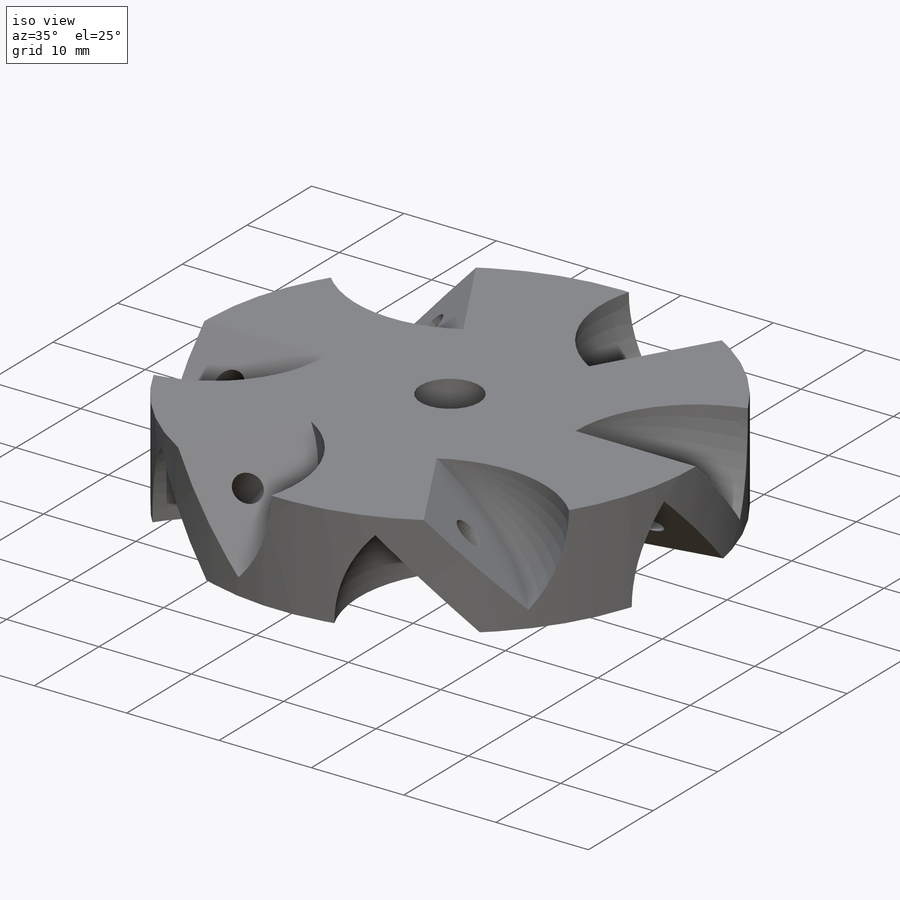
[diagram: iso view]
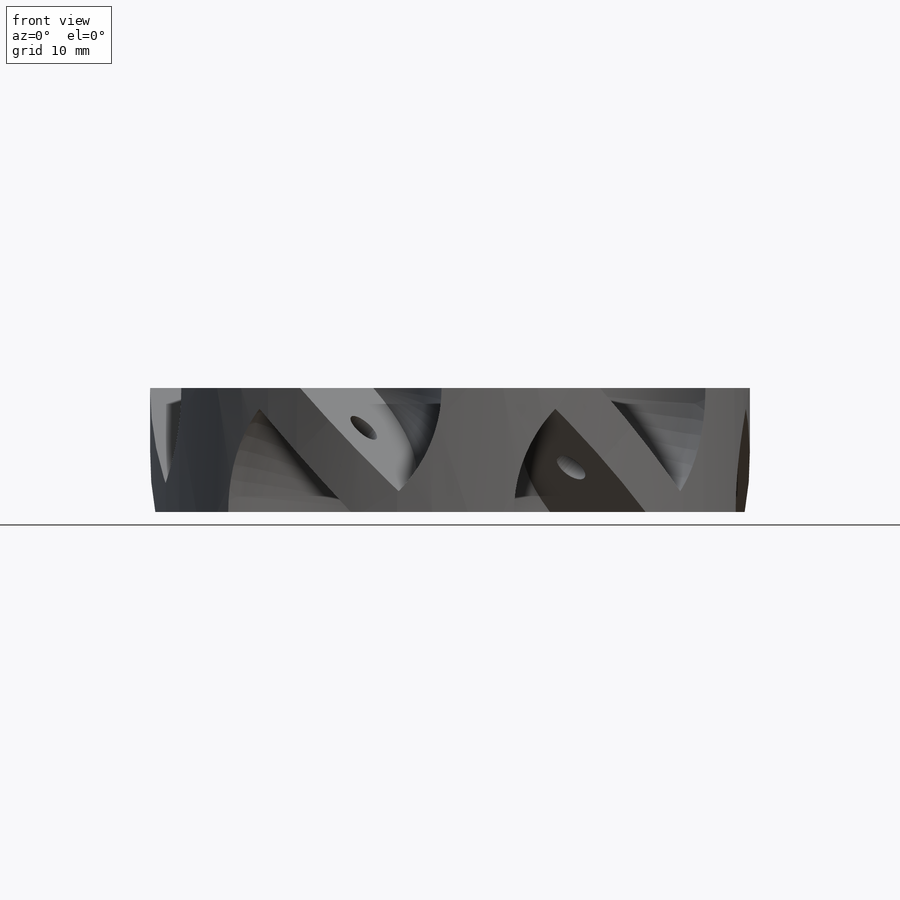
[diagram: front view]
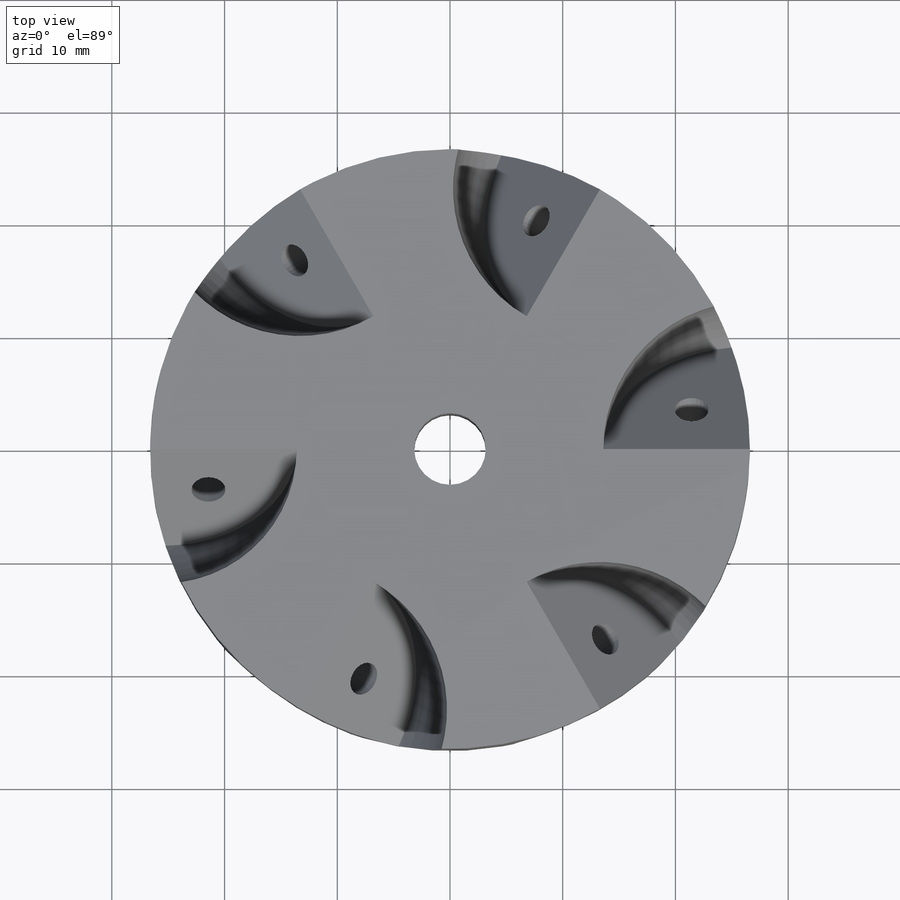
[diagram: top view]
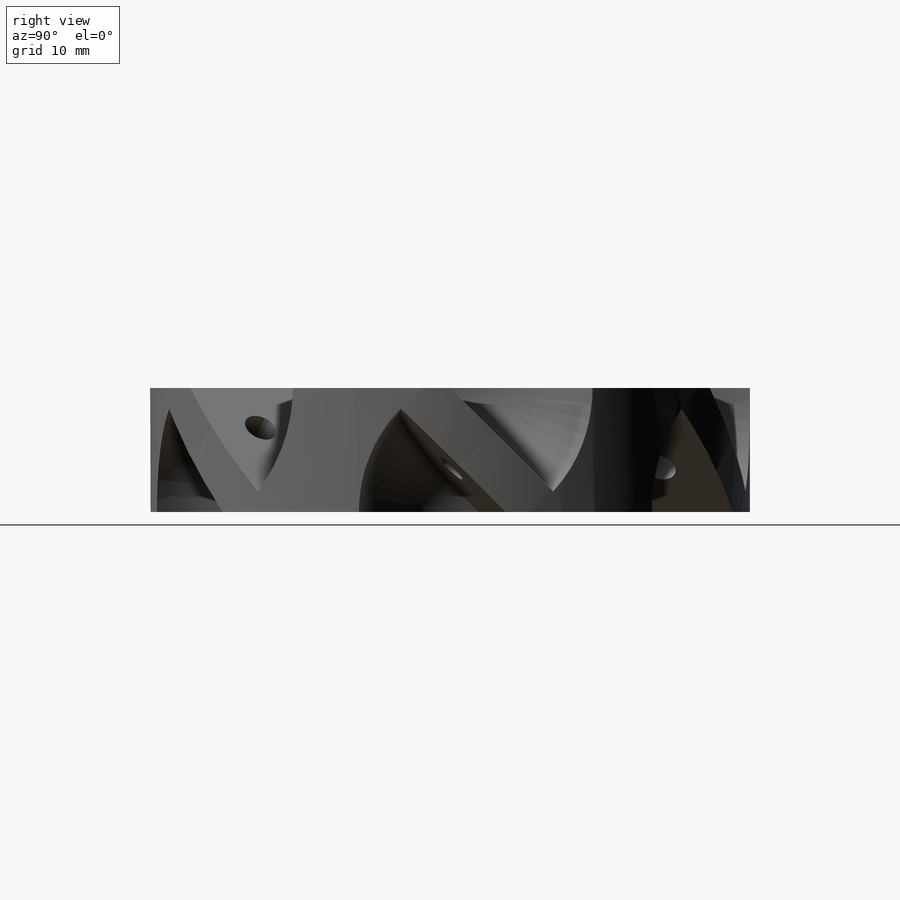
[diagram: right view]
SOLIDWORKS PART (.sldprt)
format: sldprt  version: not decoded by parser v0  size: 298,496 bytes
history: native  units: mm
features: sketch x5, plane x3, pattern_circular x3, cut_extrude x2, cut_revolve x2, material x1, extrude x1 (+13 scaffold rows collapsed)
feature tree (30):
  scaffold x13  (default folders/planes/origin — collapsed)
  material  "ABS"
  plane  "Plano frontal"
  plane  "Plano superior"
  plane  "Plano direito"
  sketch  "Esboço1"  dims[D1=53.2mm]
  extrude  "Ressalto-extrusão1"  Depth=11mm
  sketch  "Esboço2"  dims[D1=6.35mm]
  cut_extrude  "Corte-extrusão1"  [1 undecoded]
  sketch  "Esboço3"  dims[c1.D1=53.2mm c1.D2=53.2mm c2.D1=60.0mm c2.D2=16.4mm c3.D1=13.0mm]
  cut_revolve  "Corte-Revolução1"  Angle=45deg
  pattern_circular  "PadrãoCircular2"  Count=6 Angle=360deg
  sketch  "Esboço5"
  cut_revolve  "Corte-Revolução2"  Angle=45deg
  pattern_circular  "PadrãoCircular3"  Count=6 Angle=360deg
  sketch  "Esboço6"  dims[D1=3.0mm D2=22.0mm D3=5.0mm]
  cut_extrude  "Corte-extrusão2"  [1 undecoded]
  pattern_circular  "PadrãoCircular4"  Count=6 Angle=360deg
decode coverage: 10 of 13 modeling features carry decoded parameters
note: 2 parameter values undecoded
note: suppression state not decoded; provenance and decode notes live in map.json
